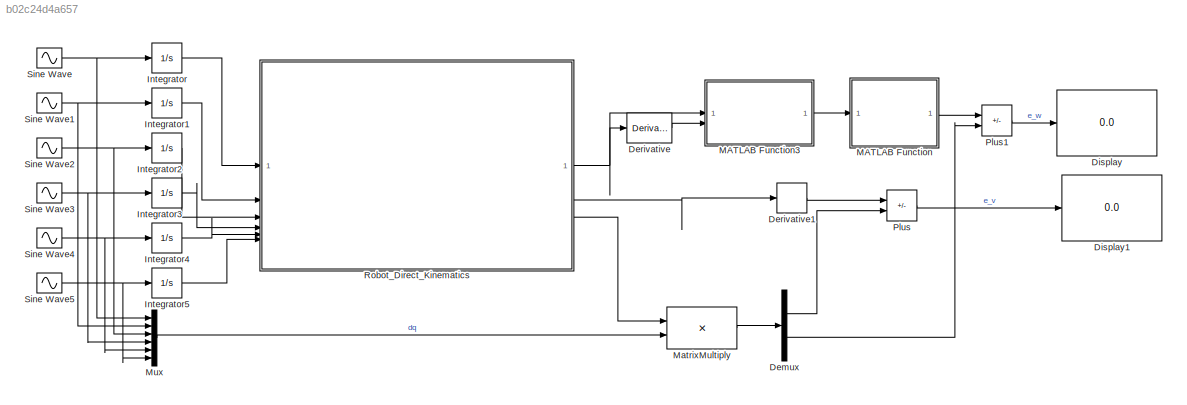
MODEL slx_b02c24d4a657
KIND model
CONFIG AbsTol = auto
CONFIG EnableMultiTasking = on
CONFIG FixedStep = auto
CONFIG MaxStep = 1e-6
CONFIG MinStep = auto
CONFIG RelTol = 1e-3
CONFIG SampleTimeConstraint = Unconstrained
CONFIG SolverName = VariableStepAuto
CONFIG StartTime = 0.0
CONFIG StopTime = inf
BLOCK [Demux] Demux
  Outputs = 2
BLOCK [Derivative] Derivative
BLOCK [Derivative] Derivative1
BLOCK [Display] Display
  Decimation = 1
BLOCK [Display] Display1
  Decimation = 1
BLOCK [Integrator] Integrator
BLOCK [Integrator] Integrator1
BLOCK [Integrator] Integrator2
BLOCK [Integrator] Integrator3
BLOCK [Integrator] Integrator4
BLOCK [Integrator] Integrator5
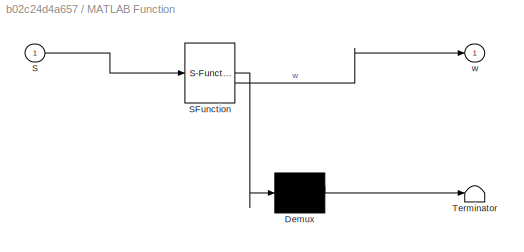
BLOCK [SubSystem] MATLAB Function
  ErrorFcn = Stateflow.Translate.translate
  PermitHierarchicalResolution = ExplicitOnly
  SFBlockType = MATLAB Function
  TreatAsAtomicUnit = on
BLOCK [Demux] MATLAB Function/ Demux 
  Outputs = 1
BLOCK [S-Function] MATLAB Function/ SFunction 
  EnableBusSupport = on
  FunctionName = sf_sfun
  PortCounts = [1 2]
  SFcnIsStateOwnerBlock = off
  SFunctionDeploymentMode = off
  Tag = Stateflow S-Function 1
BLOCK [Terminator] MATLAB Function/ Terminator 
BLOCK [Inport] MATLAB Function/S
BLOCK [Outport] MATLAB Function/w
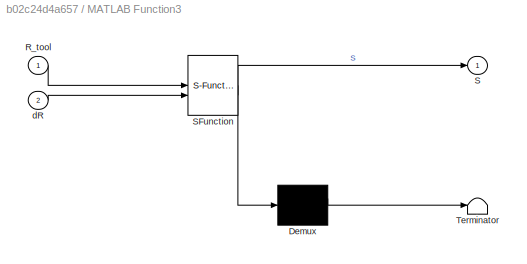
BLOCK [SubSystem] MATLAB Function3
  ErrorFcn = Stateflow.Translate.translate
  PermitHierarchicalResolution = ExplicitOnly
  SFBlockType = MATLAB Function
  TreatAsAtomicUnit = on
BLOCK [Demux] MATLAB Function3/ Demux 
  Outputs = 1
BLOCK [S-Function] MATLAB Function3/ SFunction 
  EnableBusSupport = on
  FunctionName = sf_sfun
  PortCounts = [2 2]
  SFcnIsStateOwnerBlock = off
  SFunctionDeploymentMode = off
  Tag = Stateflow S-Function 5
BLOCK [Terminator] MATLAB Function3/ Terminator 
BLOCK [Inport] MATLAB Function3/R_tool
BLOCK [Outport] MATLAB Function3/S
BLOCK [Inport] MATLAB Function3/dR
  Port = 2
BLOCK [Product] MatrixMultiply
  Multiplication = Matrix(*)
BLOCK [Mux] Mux
  DisplayOption = bar
  Inputs = 6
BLOCK [Sum] Plus
  IconShape = rectangular
  Inputs = +-
BLOCK [Sum] Plus1
  IconShape = rectangular
  Inputs = +-
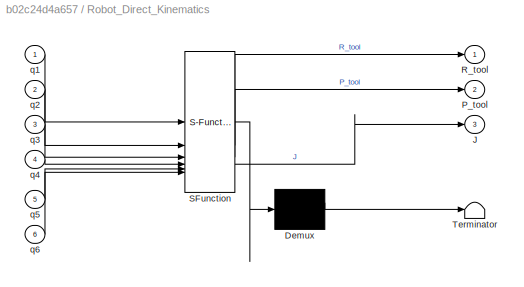
BLOCK [SubSystem] Robot_Direct_Kinematics
  ErrorFcn = Stateflow.Translate.translate
  PermitHierarchicalResolution = ExplicitOnly
  SFBlockType = MATLAB Function
  TreatAsAtomicUnit = on
BLOCK [Demux] Robot_Direct_Kinematics/ Demux 
  Outputs = 1
BLOCK [S-Function] Robot_Direct_Kinematics/ SFunction 
  EnableBusSupport = on
  FunctionName = sf_sfun
  PortCounts = [6 4]
  SFcnIsStateOwnerBlock = off
  SFunctionDeploymentMode = off
  Tag = Stateflow S-Function 2
BLOCK [Terminator] Robot_Direct_Kinematics/ Terminator 
BLOCK [Outport] Robot_Direct_Kinematics/J
  Port = 3
BLOCK [Outport] Robot_Direct_Kinematics/P_tool
  Port = 2
BLOCK [Outport] Robot_Direct_Kinematics/R_tool
BLOCK [Inport] Robot_Direct_Kinematics/q1
BLOCK [Inport] Robot_Direct_Kinematics/q2
  Port = 2
BLOCK [Inport] Robot_Direct_Kinematics/q3
  Port = 3
BLOCK [Inport] Robot_Direct_Kinematics/q4
  Port = 4
BLOCK [Inport] Robot_Direct_Kinematics/q5
  Port = 5
BLOCK [Inport] Robot_Direct_Kinematics/q6
  Port = 6
BLOCK [Sin] Sine Wave
  SampleTime = 0
BLOCK [Sin] Sine Wave1
  SampleTime = 0
BLOCK [Sin] Sine Wave2
  SampleTime = 0
BLOCK [Sin] Sine Wave3
  SampleTime = 0
BLOCK [Sin] Sine Wave4
  SampleTime = 0
BLOCK [Sin] Sine Wave5
  SampleTime = 0
LINE Demux:1 -> Plus:2
LINE Demux:2 -> Plus1:2
LINE Derivative1:1 -> Plus:1
LINE Derivative:1 -> MATLAB Function3:2
LINE Integrator1:1 -> Robot_Direct_Kinematics:2
LINE Integrator2:1 -> Robot_Direct_Kinematics:3
LINE Integrator3:1 -> Robot_Direct_Kinematics:4
LINE Integrator4:1 -> Robot_Direct_Kinematics:5
LINE Integrator5:1 -> Robot_Direct_Kinematics:6
LINE Integrator:1 -> Robot_Direct_Kinematics:1
LINE MATLAB Function3:1 -> MATLAB Function:1
LINE MATLAB Function:1 -> Plus1:1
LINE MatrixMultiply:1 -> Demux:1
LINE Mux:1 -> MatrixMultiply:2
LINE Plus1:1 -> Display:1
LINE Plus:1 -> Display1:1
NET Robot_Direct_Kinematics:1 -> Derivative:1, MATLAB Function3:1
LINE Robot_Direct_Kinematics:2 -> Derivative1:1
LINE Robot_Direct_Kinematics:3 -> MatrixMultiply:1
NET Sine Wave1:1 -> Integrator1:1, Mux:2
NET Sine Wave2:1 -> Integrator2:1, Mux:3
NET Sine Wave3:1 -> Integrator3:1, Mux:4
NET Sine Wave4:1 -> Integrator4:1, Mux:5
NET Sine Wave5:1 -> Integrator5:1, Mux:6
NET Sine Wave:1 -> Integrator:1, Mux:1
note: NET lines group one-source signal fan-out (src -> all destinations, sorted); 1:1 wires keep LINE
CHART MATLAB Function states=1 transitions=1
  STATE_LABEL 'eML_blk_kernel()'
  STATE_LABEL 'SCRIPT:\nfunction w = AngularVec(S)\n\nw = [S(3,2); S(1,3); S(2,1)];\n'
CHART Robot_Direct_Kinematics states=1 transitions=1
  STATE_LABEL 'eML_blk_kernel()'
  STATE_LABEL 'SCRIPT:\nfunction [R_tool,P_tool,J] = Robot_Direct_Kinematics(q1,q2,q3,q4,q5,q6)\n%#codegen\n\n%    This function was generated by the Symbolic Math Toolbox version 24.2.\n%    24-May-2025 22:37:09\n\n% q1 = complex(q1);  % if required to enforce complex operations\n% q2 = complex(q2);  % if required to enforce complex operations\n% q3 = complex(q3);  % if required to enforce complex operations\n% q4 = comp...<+3608ch>'
CHART MATLAB Function3 states=1 transitions=1
  STATE_LABEL 'eML_blk_kernel()'
  STATE_LABEL "SCRIPT:\nfunction S = VelocityMatrix(R_tool, dR)\n\nS = dR * R_tool';  "
CHART  states=0 transitions=0
CHART  states=0 transitions=0
CHART  states=0 transitions=0
